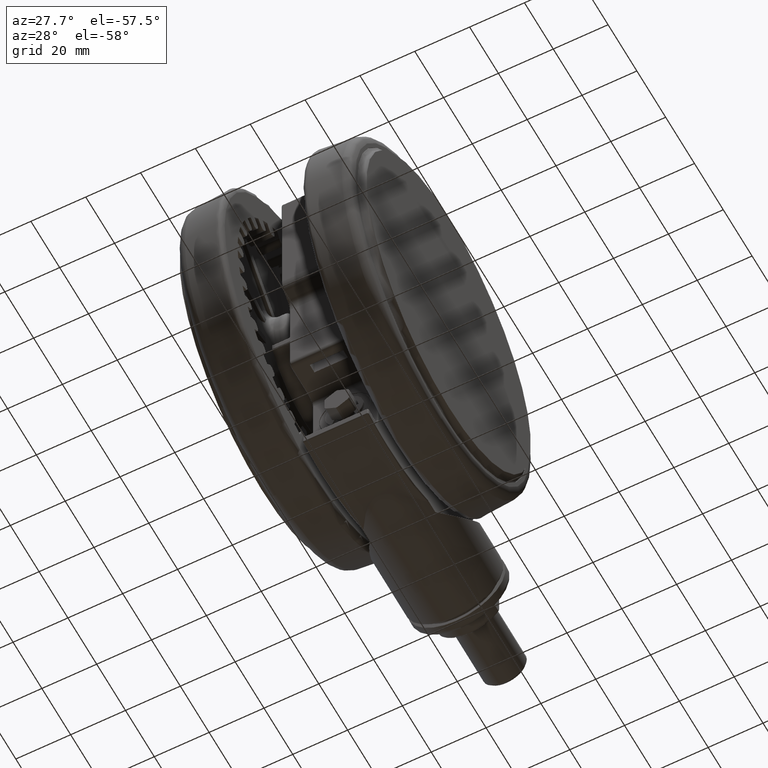
[diagram: clean part render]
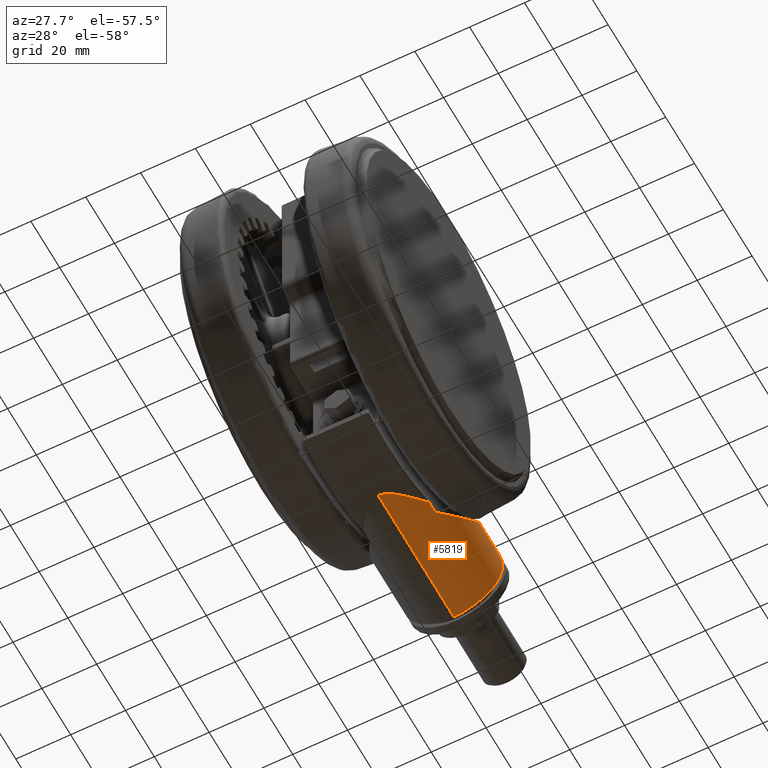
[diagram: same view with one face highlighted and labeled with its STEP entity id]
A machine part, auxiliary view. The second image highlights one B-rep face of the part: STEP entity #5819.
In plain terms, the highlighted cylindrical surface (partial cylindrical patch) has radius 18 mm, axis along (0, -1, -0).
Its self-contained STEP definition (entity closure, byte-faithful):
#1028 = ORIENTED_EDGE ( 'NONE', *, *, #35880, .F. ) ;
#1096 = CARTESIAN_POINT ( 'NONE',  ( 27.06614210760456300, 67.68111546272912400, -32.52515002337077700 ) ) ;
#1382 = CARTESIAN_POINT ( 'NONE',  ( 28.70160748628817200, 64.19818027021732100, -26.43834774374651500 ) ) ;
#1658 = CARTESIAN_POINT ( 'NONE',  ( 30.58570749890125700, 59.69324317277076400, -23.31719462978950500 ) ) ;
#1840 = VECTOR ( 'NONE', #4251, 1000.000000000000000 ) ;
#2221 = VERTEX_POINT ( 'NONE', #10000 ) ;
#2224 = CARTESIAN_POINT ( 'NONE',  ( 41.20768165810990500, 52.83090241057144700, -16.50068771614707300 ) ) ;
#2362 = CARTESIAN_POINT ( 'NONE',  ( 63.00000000000000000, 16.00000000000005700, -34.10000000000006500 ) ) ;
#2487 = CARTESIAN_POINT ( 'NONE',  ( 55.15868340109753400, 38.06560917592868500, -19.20065556778603300 ) ) ;
#2625 = CARTESIAN_POINT ( 'NONE',  ( 62.28569137523027200, 18.59536001866747100, -29.05283298260260200 ) ) ;
#4251 = DIRECTION ( 'NONE',  ( -5.217911295881489200E-017, 1.000000000000000000, -0.0000000000000000000 ) ) ;
#5307 = CARTESIAN_POINT ( 'NONE',  ( 58.48420211052903300, 27.82962919765836700, -22.17620667785486800 ) ) ;
#5819 = ADVANCED_FACE ( 'NONE', ( #67434 ), #34043, .T. ) ;
#7255 = DIRECTION ( 'NONE',  ( 5.217911295881489200E-017, -1.000000000000000000, 0.0000000000000000000 ) ) ;
#7432 = CARTESIAN_POINT ( 'NONE',  ( 27.13532945001938800, 67.53509397162231700, -31.89133214783808900 ) ) ;
#7707 = CARTESIAN_POINT ( 'NONE',  ( 29.31972042937714200, 62.81321208133081100, -25.25708756672131400 ) ) ;
#7987 = CARTESIAN_POINT ( 'NONE',  ( 31.19628043411741900, 58.00278629100984800, -22.54204867426955900 ) ) ;
#8272 = CARTESIAN_POINT ( 'NONE',  ( 32.53209497884896700, 58.57575067974865100, -21.09378444231239100 ) ) ;
#8369 = VECTOR ( 'NONE', #61040, 1000.000000000000000 ) ;
#8543 = CARTESIAN_POINT ( 'NONE',  ( 42.20432250912654100, 52.03820772875871400, -16.31525281705146900 ) ) ;
#8810 = CARTESIAN_POINT ( 'NONE',  ( 56.86788620722917600, 35.43493545862897800, -20.55560373495783800 ) ) ;
#8954 = CARTESIAN_POINT ( 'NONE',  ( 61.79253053929568300, 20.17470911895135900, -27.60073806119342500 ) ) ;
#9063 = VERTEX_POINT ( 'NONE', #62046 ) ;
#9545 = VERTEX_POINT ( 'NONE', #11136 ) ;
#10000 = CARTESIAN_POINT ( 'NONE',  ( 31.43219826552524800, 57.28085750291600000, -22.27143769147776800 ) ) ;
#10370 = LINE ( 'NONE', #73402, #8369 ) ;
#11126 = CARTESIAN_POINT ( 'NONE',  ( 63.00000000000000000, 16.00000000000005700, -34.10000000000006500 ) ) ;
#11136 = CARTESIAN_POINT ( 'NONE',  ( 27.00000000232621400, 67.82329571296227800, -34.09999999964988100 ) ) ;
#11373 = CARTESIAN_POINT ( 'NONE',  ( 58.41640786499868200, 27.44576678875309700, -22.10000000000007200 ) ) ;
#11631 = CARTESIAN_POINT ( 'NONE',  ( 58.56596399883253700, 27.91441357894227000, -22.26924938124130900 ) ) ;
#12384 = CARTESIAN_POINT ( 'NONE',  ( 58.41640786499870300, 27.34544371828905100, -22.10000000000006900 ) ) ;
#12768 = CARTESIAN_POINT ( 'NONE',  ( 63.00000000000000000, 69.00000000000000000, -34.10000000000006500 ) ) ;
#13181 = VECTOR ( 'NONE', #19067, 1000.000000000000000 ) ;
#13773 = CARTESIAN_POINT ( 'NONE',  ( 27.24451530478051400, 67.30619891527301500, -31.11424504980669400 ) ) ;
#14039 = CARTESIAN_POINT ( 'NONE',  ( 29.70007213175555400, 61.92219475337594000, -24.61455989430682900 ) ) ;
#14590 = CARTESIAN_POINT ( 'NONE',  ( 34.31573663041007200, 57.54976146266894700, -19.59403578960882800 ) ) ;
#14597 = EDGE_CURVE ( 'NONE', #9545, #2221, #36406, .T. ) ;
#14866 = CARTESIAN_POINT ( 'NONE',  ( 44.16137765927732800, 50.41474013756603500, -16.07172596920975100 ) ) ;
#15143 = CARTESIAN_POINT ( 'NONE',  ( 58.04906314678103000, 33.46444327508534400, -21.68929611944494700 ) ) ;
#15213 = VERTEX_POINT ( 'NONE', #12384 ) ;
#15285 = CARTESIAN_POINT ( 'NONE',  ( 60.82297391343457300, 22.95871793254527300, -25.47374654593920000 ) ) ;
#17487 = EDGE_CURVE ( 'NONE', #54587, #9545, #55833, .T. ) ;
#17943 = VERTEX_POINT ( 'NONE', #11126 ) ;
#17961 = CARTESIAN_POINT ( 'NONE',  ( 58.66356867800172400, 27.88087678602861500, -22.38210131451159400 ) ) ;
#18544 = LINE ( 'NONE', #66858, #1840 ) ;
#18817 = VERTEX_POINT ( 'NONE', #20834 ) ;
#19067 = DIRECTION ( 'NONE',  ( 5.217911295881489200E-017, -1.000000000000000000, 0.0000000000000000000 ) ) ;
#19201 = DIRECTION ( 'NONE',  ( 5.217911295881489200E-017, -1.000000000000000000, 0.0000000000000000000 ) ) ;
#20042 = ORIENTED_EDGE ( 'NONE', *, *, #51326, .F. ) ;
#20060 = CARTESIAN_POINT ( 'NONE',  ( 27.42779434949851900, 66.92248144829613900, -30.19591483057911700 ) ) ;
#20328 = CARTESIAN_POINT ( 'NONE',  ( 29.99329104215049900, 61.20788244075375700, -24.16006867614644800 ) ) ;
#20834 = CARTESIAN_POINT ( 'NONE',  ( 31.43221101434785000, 59.16938491102899200, -22.27142857142865000 ) ) ;
#20907 = CARTESIAN_POINT ( 'NONE',  ( 35.58025733659903300, 56.77317183851714300, -18.75692733139959500 ) ) ;
#21193 = CARTESIAN_POINT ( 'NONE',  ( 47.24676014905843100, 47.51275555645696600, -16.23032165833322800 ) ) ;
#21326 = CARTESIAN_POINT ( 'NONE',  ( 62.94512722622329200, 16.21476791840899200, -32.65005110094058000 ) ) ;
#21606 = CARTESIAN_POINT ( 'NONE',  ( 59.39878031678571800, 26.42859649787573100, -23.26394934674036800 ) ) ;
#24292 = CARTESIAN_POINT ( 'NONE',  ( 58.76794013944363100, 27.76096168469771500, -22.50474092721811600 ) ) ;
#24429 = VECTOR ( 'NONE', #24933, 1000.000000000000000 ) ;
#24933 = DIRECTION ( 'NONE',  ( 5.217911295881489200E-017, -1.000000000000000000, 0.0000000000000000000 ) ) ;
#25661 = CARTESIAN_POINT ( 'NONE',  ( 58.80956934843317900, 27.68469759736918700, -22.55446851132583300 ) ) ;
#26127 = CARTESIAN_POINT ( 'NONE',  ( 27.00000000232621400, 67.82329571296227800, -34.09999999964988100 ) ) ;
#26227 = CARTESIAN_POINT ( 'NONE',  ( 45.00000000000000000, 69.00000000000000000, -34.10000000000006500 ) ) ;
#26404 = CARTESIAN_POINT ( 'NONE',  ( 27.53010713784997800, 66.70778380839733800, -29.76120331008695200 ) ) ;
#26673 = CARTESIAN_POINT ( 'NONE',  ( 30.07544309393808400, 61.00385755500816700, -24.03727319381285500 ) ) ;
#27223 = CARTESIAN_POINT ( 'NONE',  ( 36.55880616990670300, 56.14810259958510800, -18.19772246325277700 ) ) ;
#27480 = B_SPLINE_CURVE_WITH_KNOTS ( 'NONE', 3,
 ( #30336, #11373, #36707, #80542, #43003, #5307, #49265, #11631, #55578, #17961, #61923, #24292, #25661, #69556 ),
 .UNSPECIFIED., .F., .F.,
 ( 4, 2, 2, 2, 2, 2, 4 ),
 ( 0.0000000000000000000, 0.0003000058049721793500, 0.0004500087074582714400, 0.0006000116099443634800, 0.0007500145124304555100, 0.0009000174149165476500, 0.001200023219888725400 ),
 .UNSPECIFIED. ) ;
#27510 = CARTESIAN_POINT ( 'NONE',  ( 49.01823194365599800, 45.68297584128433200, -16.54405435237466900 ) ) ;
#27648 = CARTESIAN_POINT ( 'NONE',  ( 62.83431901994315900, 16.63948756302390200, -31.64063744673937300 ) ) ;
#30191 = EDGE_LOOP ( 'NONE', ( #80341, #58552, #66623, #38856, #63416, #33681, #30864, #20042, #1028 ) ) ;
#30336 = CARTESIAN_POINT ( 'NONE',  ( 58.41640786499870300, 27.34544371828905100, -22.10000000000006900 ) ) ;
#30716 = CARTESIAN_POINT ( 'NONE',  ( 27.00000000000000000, 69.00000000000000000, -34.10000000000006500 ) ) ;
#30864 = ORIENTED_EDGE ( 'NONE', *, *, #66855, .T. ) ;
#32482 = CARTESIAN_POINT ( 'NONE',  ( 27.00201533165522200, 67.81909666149800800, -33.78829076255852500 ) ) ;
#32746 = CARTESIAN_POINT ( 'NONE',  ( 27.76477530957808800, 66.21361483177416600, -28.90054944784214900 ) ) ;
#33003 = CARTESIAN_POINT ( 'NONE',  ( 30.12258544996889100, 60.88595072839852700, -23.96771043773805200 ) ) ;
#33041 = EDGE_CURVE ( 'NONE', #44039, #54587, #62665, .T. ) ;
#33284 = CARTESIAN_POINT ( 'NONE',  ( 31.96707932766106800, 58.88524990245608100, -21.65791573482216800 ) ) ;
#33573 = CARTESIAN_POINT ( 'NONE',  ( 38.21007027191829800, 55.04232053305885600, -17.41477056196533400 ) ) ;
#33681 = ORIENTED_EDGE ( 'NONE', *, *, #72876, .T. ) ;
#33843 = CARTESIAN_POINT ( 'NONE',  ( 51.24519632599614700, 43.19380528626260200, -17.17880678705231300 ) ) ;
#33982 = CARTESIAN_POINT ( 'NONE',  ( 62.67993255770405600, 17.21243333021914900, -30.70626517168167900 ) ) ;
#34043 = CYLINDRICAL_SURFACE ( 'NONE', #48496, 18.00000000000000400 ) ;
#34795 = CARTESIAN_POINT ( 'NONE',  ( 26.99999999999999600, 68.50000000000000000, -34.10000000000007200 ) ) ;
#35880 = EDGE_CURVE ( 'NONE', #44039, #17943, #63302, .T. ) ;
#36310 = CARTESIAN_POINT ( 'NONE',  ( 63.00000000000000000, 68.50000000000000000, -34.10000000000006500 ) ) ;
#36406 = B_SPLINE_CURVE_WITH_KNOTS ( 'NONE', 3,
 ( #26127, #44828, #32482, #76358, #38811, #1096, #45096, #7432, #51386, #13773, #57706, #20060, #64016, #26404, #70328, #32746, #76631, #39082, #1382, #45379, #7707, #51657, #14039, #58000, #20328, #64299, #26673, #70615, #33003, #76907, #39373, #1658, #45643, #7987, #51926 ),
 .UNSPECIFIED., .F., .F.,
 ( 4, 2, 1, 2, 2, 1, 2, 2, 1, 2, 2, 2, 2, 2, 2, 2, 1, 1, 2, 4 ),
 ( 0.4997011025903751500, 0.5149259359329873000, 0.5301507692755994500, 0.5606004359608236500, 0.5758252693034359200, 0.5910501026460480700, 0.6214997693312724900, 0.6367246026738845300, 0.6519494360164965800, 0.6823991027017205500, 0.7432984360721679500, 0.8041977694426154500, 0.8346474361278395400, 0.8650971028130631800, 0.8727095194843692600, 0.8765157278200219600, 0.8803219361556746700, 0.8955467694982841600, 0.9259964361835029100, 0.9868957695539399800 ),
 .UNSPECIFIED. ) ;
#36707 = CARTESIAN_POINT ( 'NONE',  ( 58.42057723813346800, 27.54627978235791400, -22.10464243000282300 ) ) ;
#38811 = CARTESIAN_POINT ( 'NONE',  ( 27.02863694349037300, 67.76147168029452000, -33.00231471585350100 ) ) ;
#38856 = ORIENTED_EDGE ( 'NONE', *, *, #77522, .T. ) ;
#39082 = CARTESIAN_POINT ( 'NONE',  ( 28.24084609274394000, 65.19993477132256000, -27.50687675379294100 ) ) ;
#39373 = CARTESIAN_POINT ( 'NONE',  ( 30.40064838187086200, 60.18108848950743100, -23.56724930814147700 ) ) ;
#39438 = AXIS2_PLACEMENT_3D ( 'NONE', #56820, #19201, #63148 ) ;
#39657 = CARTESIAN_POINT ( 'NONE',  ( 31.43221101434785000, 59.16938491102899200, -22.27142857142865000 ) ) ;
#39930 = CARTESIAN_POINT ( 'NONE',  ( 40.20683563153770700, 53.60148763891079700, -16.73637536629629400 ) ) ;
#40064 = CARTESIAN_POINT ( 'NONE',  ( 63.00000000000000000, 16.00000000000003900, -33.73296376204386600 ) ) ;
#40199 = CARTESIAN_POINT ( 'NONE',  ( 54.24017414774871800, 39.36501457115159000, -18.61349229904094900 ) ) ;
#40341 = CARTESIAN_POINT ( 'NONE',  ( 62.43054978194915300, 18.10096678338681300, -29.57144694429220500 ) ) ;
#43003 = CARTESIAN_POINT ( 'NONE',  ( 58.45297955813868600, 27.74113974024467300, -22.14099106300477300 ) ) ;
#44039 = VERTEX_POINT ( 'NONE', #36310 ) ;
#44828 = CARTESIAN_POINT ( 'NONE',  ( 27.00000000000304500, 67.82343508862588500, -33.94649778794352800 ) ) ;
#45096 = CARTESIAN_POINT ( 'NONE',  ( 27.11691472586480600, 67.57382911055003700, -32.04546503646464100 ) ) ;
#45193 = DIRECTION ( 'NONE',  ( 1.000000000000000000, 0.0000000000000000000, 0.0000000000000000000 ) ) ;
#45379 = CARTESIAN_POINT ( 'NONE',  ( 28.94463039377171400, 63.66525663065665700, -25.94535851986655600 ) ) ;
#45643 = CARTESIAN_POINT ( 'NONE',  ( 30.95374303908645100, 58.69611726397341300, -22.83653937618285900 ) ) ;
#46189 = CARTESIAN_POINT ( 'NONE',  ( 41.54210252515790800, 52.56837090746750400, -16.43206322040253300 ) ) ;
#46470 = CARTESIAN_POINT ( 'NONE',  ( 56.45204908777149200, 36.09409775726639000, -20.20223399500332900 ) ) ;
#46610 = CARTESIAN_POINT ( 'NONE',  ( 61.96638178470087900, 19.63319364818117300, -28.06585462911405300 ) ) ;
#48496 = AXIS2_PLACEMENT_3D ( 'NONE', #26227, #7255, #45193 ) ;
#49265 = CARTESIAN_POINT ( 'NONE',  ( 58.50642958254454100, 27.87098681637376500, -22.20132783237367100 ) ) ;
#51326 = EDGE_CURVE ( 'NONE', #17943, #63337, #81477, .T. ) ;
#51386 = CARTESIAN_POINT ( 'NONE',  ( 27.17659001136983600, 67.44849246723522600, -31.57993573143129500 ) ) ;
#51657 = CARTESIAN_POINT ( 'NONE',  ( 29.44483138160192600, 62.52410021665792800, -25.03920003391647200 ) ) ;
#51926 = CARTESIAN_POINT ( 'NONE',  ( 31.43219826552524800, 57.28085750291600000, -22.27143769147776800 ) ) ;
#52214 = CARTESIAN_POINT ( 'NONE',  ( 33.70581707347330500, 57.90832122258837700, -20.06248844090836800 ) ) ;
#52484 = CARTESIAN_POINT ( 'NONE',  ( 42.53273845857759700, 51.77012401432133300, -16.26687793784575900 ) ) ;
#52758 = CARTESIAN_POINT ( 'NONE',  ( 57.66606364184104200, 34.12061307612608400, -21.29889750712613500 ) ) ;
#52907 = CARTESIAN_POINT ( 'NONE',  ( 61.23833036432262100, 21.82223105290649200, -26.27474743994087800 ) ) ;
#54587 = VERTEX_POINT ( 'NONE', #34795 ) ;
#55578 = CARTESIAN_POINT ( 'NONE',  ( 58.60150164851396700, 27.91256651187207900, -22.31011401550837200 ) ) ;
#55833 = LINE ( 'NONE', #30716, #24429 ) ;
#56820 = CARTESIAN_POINT ( 'NONE',  ( 45.00000000000000000, 68.50000000000000000, -34.10000000000006500 ) ) ;
#57706 = CARTESIAN_POINT ( 'NONE',  ( 27.33033885624493600, 67.12673147716617400, -30.65322690051891600 ) ) ;
#58000 = CARTESIAN_POINT ( 'NONE',  ( 29.82963905111824200, 61.61062240275494200, -24.40892554062914900 ) ) ;
#58534 = CARTESIAN_POINT ( 'NONE',  ( 35.26039207240512500, 56.97228235839522600, -18.95786812325598800 ) ) ;
#58552 = ORIENTED_EDGE ( 'NONE', *, *, #17487, .T. ) ;
#58811 = CARTESIAN_POINT ( 'NONE',  ( 45.42133339057271300, 49.28260964705090400, -16.06348650702907200 ) ) ;
#58951 = CARTESIAN_POINT ( 'NONE',  ( 62.98879026936976500, 16.04431489888705900, -33.36967978266291400 ) ) ;
#59085 = CARTESIAN_POINT ( 'NONE',  ( 58.41640786499870300, 32.81041438552880200, -22.10000000000006900 ) ) ;
#59220 = CARTESIAN_POINT ( 'NONE',  ( 59.90329891964886900, 25.26126804663038400, -23.96735802317487100 ) ) ;
#61040 = DIRECTION ( 'NONE',  ( 5.217911295881489200E-017, -1.000000000000000000, 0.0000000000000000000 ) ) ;
#61923 = CARTESIAN_POINT ( 'NONE',  ( 58.69140851721475400, 27.85373984561361400, -22.41467223494364800 ) ) ;
#62041 = EDGE_CURVE ( 'NONE', #18817, #9063, #68747, .T. ) ;
#62046 = CARTESIAN_POINT ( 'NONE',  ( 58.41640786499870300, 32.81041438552880200, -22.10000000000006900 ) ) ;
#62665 = CIRCLE ( 'NONE', #39438, 18.00000000000000400 ) ;
#63148 = DIRECTION ( 'NONE',  ( 1.000000000000000000, 0.0000000000000000000, 0.0000000000000000000 ) ) ;
#63302 = LINE ( 'NONE', #12768, #13181 ) ;
#63337 = VERTEX_POINT ( 'NONE', #75021 ) ;
#63416 = ORIENTED_EDGE ( 'NONE', *, *, #62041, .T. ) ;
#64016 = CARTESIAN_POINT ( 'NONE',  ( 27.46050549096927900, 66.85387296732930900, -30.05173547071313000 ) ) ;
#64299 = CARTESIAN_POINT ( 'NONE',  ( 30.02610628729524200, 61.12667072216726900, -24.11070645372876700 ) ) ;
#64848 = CARTESIAN_POINT ( 'NONE',  ( 36.22932132903499500, 56.36119257771194700, -18.37687606074005600 ) ) ;
#65117 = CARTESIAN_POINT ( 'NONE',  ( 47.84447382566653300, 46.91084809447101400, -16.31612010301211400 ) ) ;
#65256 = CARTESIAN_POINT ( 'NONE',  ( 62.91323360223074700, 16.33858105133860800, -32.30348643606619400 ) ) ;
#65514 = CARTESIAN_POINT ( 'NONE',  ( 58.84738242412620200, 27.60408632482949900, -22.60000000000006900 ) ) ;
#66623 = ORIENTED_EDGE ( 'NONE', *, *, #14597, .T. ) ;
#66855 = EDGE_CURVE ( 'NONE', #15213, #63337, #27480, .T. ) ;
#66858 = CARTESIAN_POINT ( 'NONE',  ( 31.43221101434785000, 69.00000000000000000, -22.27142857142865000 ) ) ;
#67434 = FACE_OUTER_BOUND ( 'NONE', #30191, .T. ) ;
#68747 = B_SPLINE_CURVE_WITH_KNOTS ( 'NONE', 3,
 ( #39657, #33284, #8272, #52214, #14590, #58534, #20907, #64848, #27223, #71170, #33573, #77467, #39930, #2224, #46189, #8543, #52484, #14866, #58811, #21193, #65117, #27510, #71431, #33843, #77737, #40199, #2487, #46470, #8810, #52758, #15143, #59085 ),
 .UNSPECIFIED., .F., .F.,
 ( 4, 2, 2, 2, 2, 2, 2, 2, 2, 2, 2, 2, 2, 2, 2, 4 ),
 ( -0.0002386625665848524900, 0.002306546216419904200, 0.004851754999424660900, 0.006124359390927033200, 0.007396963782429407200, 0.009942172565434139600, 0.01248738134843887000, 0.01375998573994123000, 0.01503259013144358700, 0.02012300769745306600, 0.02266821648045781700, 0.02521342526346256900, 0.03030384282947208200, 0.03539426039548158900, 0.03793946917848634700, 0.04048467796149109900 ),
 .UNSPECIFIED. ) ;
#69556 = CARTESIAN_POINT ( 'NONE',  ( 58.84738242412620200, 27.60408632482949900, -22.60000000000006900 ) ) ;
#70328 = CARTESIAN_POINT ( 'NONE',  ( 27.63973850838714300, 66.47746977003397700, -29.32752157655685800 ) ) ;
#70615 = CARTESIAN_POINT ( 'NONE',  ( 30.09171115884843300, 60.96323916706468500, -24.01319280962523500 ) ) ;
#71170 = CARTESIAN_POINT ( 'NONE',  ( 37.54710795101791400, 55.49628474883689900, -17.69880685321988900 ) ) ;
#71431 = CARTESIAN_POINT ( 'NONE',  ( 49.58781161632131800, 45.06376237625520500, -16.68494045952810700 ) ) ;
#71575 = CARTESIAN_POINT ( 'NONE',  ( 62.78697928749812700, 16.81775961704915500, -31.32136379566929200 ) ) ;
#72876 = EDGE_CURVE ( 'NONE', #9063, #15213, #10370, .T. ) ;
#73402 = CARTESIAN_POINT ( 'NONE',  ( 58.41640786499870300, 69.00000000000000000, -22.10000000000006900 ) ) ;
#75021 = CARTESIAN_POINT ( 'NONE',  ( 58.84738242412620200, 27.60408632482949900, -22.60000000000006900 ) ) ;
#76358 = CARTESIAN_POINT ( 'NONE',  ( 27.01018319708686000, 67.80143269593934000, -33.47461518382359500 ) ) ;
#76631 = CARTESIAN_POINT ( 'NONE',  ( 28.03460642237436000, 65.64118375539267400, -28.05645423191679600 ) ) ;
#76907 = CARTESIAN_POINT ( 'NONE',  ( 30.19978738053789900, 60.69217142143812500, -23.85454115236004200 ) ) ;
#77467 = CARTESIAN_POINT ( 'NONE',  ( 39.53992659532073600, 54.09492328015241500, -16.93353194370896700 ) ) ;
#77522 = EDGE_CURVE ( 'NONE', #2221, #18817, #18544, .T. ) ;
#77737 = CARTESIAN_POINT ( 'NONE',  ( 52.28338957305473400, 41.92908344475557000, -17.60257670483947500 ) ) ;
#77878 = CARTESIAN_POINT ( 'NONE',  ( 62.62097232459504400, 17.42608565526765600, -30.41431160355400500 ) ) ;
#80341 = ORIENTED_EDGE ( 'NONE', *, *, #33041, .T. ) ;
#80542 = CARTESIAN_POINT ( 'NONE',  ( 58.44282307468578400, 27.69281891912531900, -22.12959349303903200 ) ) ;
#81477 = B_SPLINE_CURVE_WITH_KNOTS ( 'NONE', 3,
 ( #2362, #40064, #58951, #21326, #65256, #27648, #71575, #33982, #77878, #40341, #2625, #46610, #8954, #52907, #15285, #59220, #21606, #65514 ),
 .UNSPECIFIED., .F., .F.,
 ( 4, 2, 2, 2, 2, 2, 2, 2, 4 ),
 ( 0.01856654758789082200, 0.01965893162401118100, 0.02075131566013153900, 0.02184369969625189400, 0.02293608373237226300, 0.02512085180461300800, 0.02730561987685375300, 0.03167515602133524200, 0.03604469216581673900 ),
 .UNSPECIFIED. ) ;